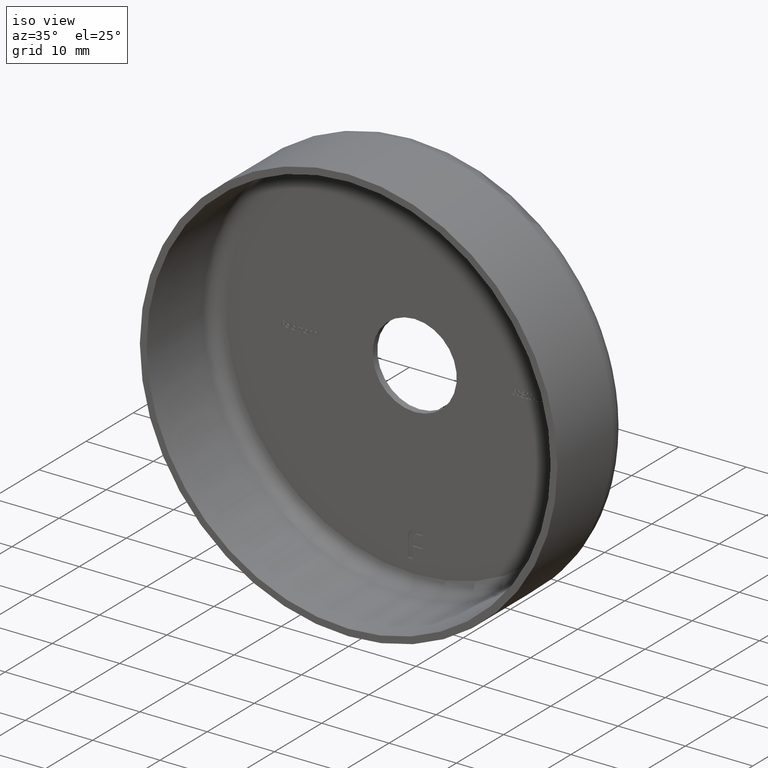
[diagram: clean part render]
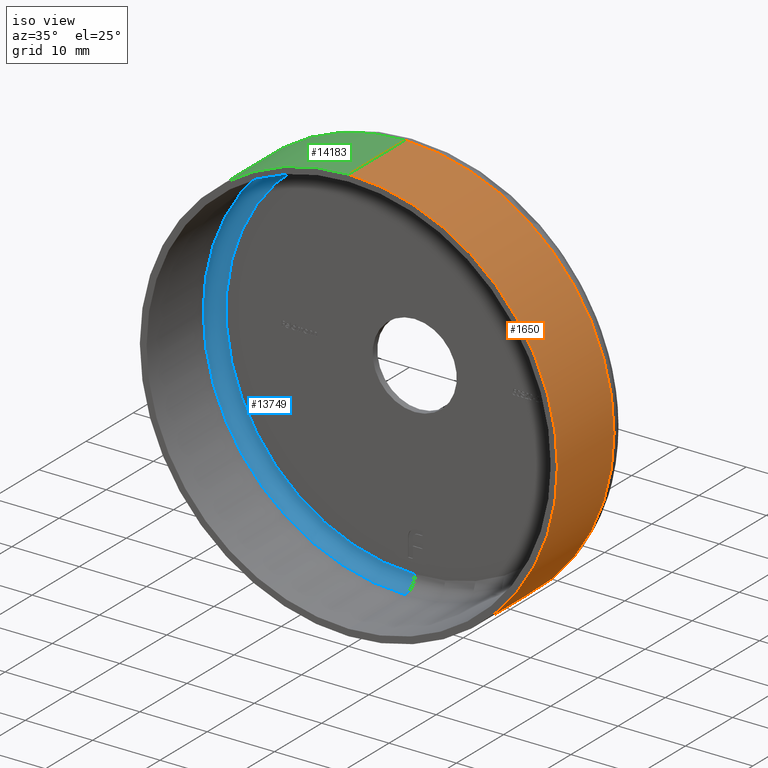
[diagram: same view with three faces highlighted in distinct colors, each labeled with its STEP entity id]
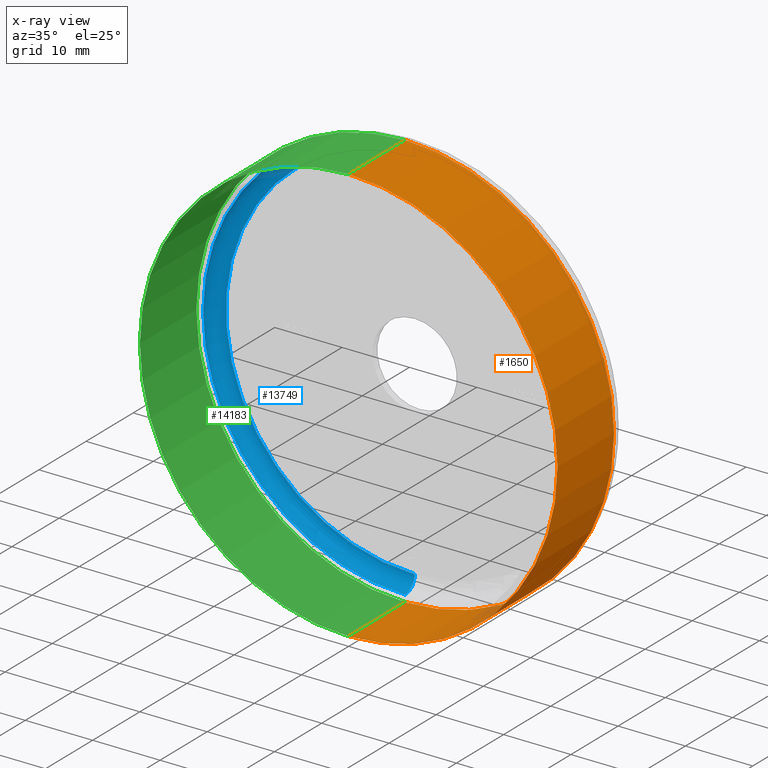
[diagram: x-ray of the same camera — body ghosted, the three highlighted faces saturated]
A machine part, iso view with three faces highlighted in distinct colors.
The next image is the same camera in x-ray (body ghosted, the three faces saturated) — at least one of them is partly hidden behind the body in this view.
Their STEP definitions:

[orange] entity #1650 — the highlighted cylindrical surface (partial cylindrical patch) has radius 31 mm, axis along (-0, -1, -0).
#221 = VERTEX_POINT ( 'NONE', #15718 ) ;
#300 = CIRCLE ( 'NONE', #9098, 31.00000000000000000 ) ;
#369 = DIRECTION ( 'NONE',  ( 0.000000000000000000, 0.000000000000000000, -1.000000000000000000 ) ) ;
#527 = EDGE_CURVE ( 'NONE', #8568, #221, #2479, .T. ) ;
#679 = CARTESIAN_POINT ( 'NONE',  ( 3.796405077356795115E-15, 0.000000000000000000, 31.00000000000000000 ) ) ;
#1650 = ADVANCED_FACE ( 'NONE', ( #9053 ), #14425, .T. ) ;
#1880 = ORIENTED_EDGE ( 'NONE', *, *, #527, .T. ) ;
#2398 = EDGE_CURVE ( 'NONE', #221, #10810, #6713, .T. ) ;
#2479 = CIRCLE ( 'NONE', #4828, 31.00000000000000000 ) ;
#2665 = EDGE_CURVE ( 'NONE', #6222, #10810, #300, .T. ) ;
#3789 = DIRECTION ( 'NONE',  ( -0.000000000000000000, -1.000000000000000000, -0.000000000000000000 ) ) ;
#4602 = CARTESIAN_POINT ( 'NONE',  ( 3.796405077356795115E-15, 0.000000000000000000, 31.00000000000000000 ) ) ;
#4604 = DIRECTION ( 'NONE',  ( -0.000000000000000000, -1.000000000000000000, -0.000000000000000000 ) ) ;
#4828 = AXIS2_PLACEMENT_3D ( 'NONE', #16277, #8327, #369 ) ;
#4832 = VECTOR ( 'NONE', #3789, 1000.000000000000000 ) ;
#4951 = AXIS2_PLACEMENT_3D ( 'NONE', #7327, #4604, #5929 ) ;
#5474 = EDGE_CURVE ( 'NONE', #8568, #6222, #12940, .T. ) ;
#5929 = DIRECTION ( 'NONE',  ( 0.000000000000000000, 0.000000000000000000, -1.000000000000000000 ) ) ;
#6222 = VERTEX_POINT ( 'NONE', #11589 ) ;
#6713 = LINE ( 'NONE', #679, #15481 ) ;
#7184 = CARTESIAN_POINT ( 'NONE',  ( 0.000000000000000000, 12.00000000000000000, -31.00000000000000000 ) ) ;
#7327 = CARTESIAN_POINT ( 'NONE',  ( 0.000000000000000000, 0.000000000000000000, 0.000000000000000000 ) ) ;
#8030 = CARTESIAN_POINT ( 'NONE',  ( 0.000000000000000000, 0.000000000000000000, 0.000000000000000000 ) ) ;
#8327 = DIRECTION ( 'NONE',  ( -0.000000000000000000, -1.000000000000000000, -0.000000000000000000 ) ) ;
#8568 = VERTEX_POINT ( 'NONE', #7184 ) ;
#9053 = FACE_OUTER_BOUND ( 'NONE', #13341, .T. ) ;
#9098 = AXIS2_PLACEMENT_3D ( 'NONE', #8030, #9427, #9324 ) ;
#9200 = CARTESIAN_POINT ( 'NONE',  ( 0.000000000000000000, 0.000000000000000000, -31.00000000000000000 ) ) ;
#9324 = DIRECTION ( 'NONE',  ( 0.000000000000000000, 0.000000000000000000, -1.000000000000000000 ) ) ;
#9427 = DIRECTION ( 'NONE',  ( -0.000000000000000000, -1.000000000000000000, -0.000000000000000000 ) ) ;
#9978 = DIRECTION ( 'NONE',  ( -0.000000000000000000, -1.000000000000000000, -0.000000000000000000 ) ) ;
#10810 = VERTEX_POINT ( 'NONE', #4602 ) ;
#11589 = CARTESIAN_POINT ( 'NONE',  ( 0.000000000000000000, 0.000000000000000000, -31.00000000000000000 ) ) ;
#11889 = ORIENTED_EDGE ( 'NONE', *, *, #5474, .F. ) ;
#12940 = LINE ( 'NONE', #9200, #4832 ) ;
#13341 = EDGE_LOOP ( 'NONE', ( #1880, #14442, #13627, #11889 ) ) ;
#13627 = ORIENTED_EDGE ( 'NONE', *, *, #2665, .F. ) ;
#14425 = CYLINDRICAL_SURFACE ( 'NONE', #4951, 31.00000000000000000 ) ;
#14442 = ORIENTED_EDGE ( 'NONE', *, *, #2398, .T. ) ;
#15481 = VECTOR ( 'NONE', #9978, 1000.000000000000000 ) ;
#15718 = CARTESIAN_POINT ( 'NONE',  ( 3.796405077356795115E-15, 12.00000000000000000, 31.00000000000000000 ) ) ;
#16277 = CARTESIAN_POINT ( 'NONE',  ( 0.000000000000000000, 12.00000000000000000, 0.000000000000000000 ) ) ;

[blue] entity #13749 — the highlighted toroidal blend (fillet) surface has major radius 28 mm and minor (blend) radius 2 mm.
#994 = DIRECTION ( 'NONE',  ( -0.000000000000000000, -1.000000000000000000, -0.000000000000000000 ) ) ;
#1106 = DIRECTION ( 'NONE',  ( -0.000000000000000000, -1.000000000000000000, -0.000000000000000000 ) ) ;
#2013 = AXIS2_PLACEMENT_3D ( 'NONE', #16828, #1106, #7770 ) ;
#2286 = CARTESIAN_POINT ( 'NONE',  ( 0.000000000000000000, 12.00000000000000000, -30.00000000000000000 ) ) ;
#2421 = FACE_OUTER_BOUND ( 'NONE', #8315, .T. ) ;
#3278 = CIRCLE ( 'NONE', #13992, 2.000000000000001776 ) ;
#3483 = EDGE_CURVE ( 'NONE', #4396, #7032, #7973, .T. ) ;
#3486 = DIRECTION ( 'NONE',  ( 0.000000000000000000, 0.000000000000000000, -1.000000000000000000 ) ) ;
#3742 = ORIENTED_EDGE ( 'NONE', *, *, #17010, .F. ) ;
#4037 = DIRECTION ( 'NONE',  ( 1.000000000000000000, 0.000000000000000000, -1.224646799147353207E-16 ) ) ;
#4396 = VERTEX_POINT ( 'NONE', #5768 ) ;
#4819 = CARTESIAN_POINT ( 'NONE',  ( 0.000000000000000000, 14.00000000000000000, 0.000000000000000000 ) ) ;
#5155 = ORIENTED_EDGE ( 'NONE', *, *, #3483, .F. ) ;
#5216 = AXIS2_PLACEMENT_3D ( 'NONE', #11999, #4037, #5346 ) ;
#5346 = DIRECTION ( 'NONE',  ( -1.224646799147351482E-16, 0.000000000000000000, -1.000000000000000000 ) ) ;
#5768 = CARTESIAN_POINT ( 'NONE',  ( 3.551475717527324030E-15, 14.00000000000000000, 27.99999999999999645 ) ) ;
#6825 = VERTEX_POINT ( 'NONE', #9738 ) ;
#7032 = VERTEX_POINT ( 'NONE', #14485 ) ;
#7430 = DIRECTION ( 'NONE',  ( -1.000000000000000000, 0.000000000000000000, 0.000000000000000000 ) ) ;
#7770 = DIRECTION ( 'NONE',  ( 0.000000000000000000, 0.000000000000000000, -1.000000000000000000 ) ) ;
#7973 = CIRCLE ( 'NONE', #8071, 27.99999999999999645 ) ;
#8071 = AXIS2_PLACEMENT_3D ( 'NONE', #4819, #14335, #3486 ) ;
#8315 = EDGE_LOOP ( 'NONE', ( #5155, #14572, #13979, #3742 ) ) ;
#9738 = CARTESIAN_POINT ( 'NONE',  ( 3.673940397442059178E-15, 12.00000000000000000, 30.00000000000000000 ) ) ;
#10186 = CARTESIAN_POINT ( 'NONE',  ( 0.000000000000000000, 12.00000000000000000, -27.99999999999999645 ) ) ;
#10245 = DIRECTION ( 'NONE',  ( 0.000000000000000000, 0.000000000000000000, 1.000000000000000000 ) ) ;
#10883 = VERTEX_POINT ( 'NONE', #2286 ) ;
#11251 = AXIS2_PLACEMENT_3D ( 'NONE', #11633, #994, #16903 ) ;
#11633 = CARTESIAN_POINT ( 'NONE',  ( 0.000000000000000000, 12.00000000000000000, 0.000000000000000000 ) ) ;
#11999 = CARTESIAN_POINT ( 'NONE',  ( 3.429011037612588881E-15, 12.00000000000000000, 27.99999999999999645 ) ) ;
#12821 = EDGE_CURVE ( 'NONE', #6825, #10883, #13037, .T. ) ;
#13037 = CIRCLE ( 'NONE', #2013, 30.00000000000000000 ) ;
#13749 = ADVANCED_FACE ( 'NONE', ( #2421 ), #16110, .F. ) ;
#13979 = ORIENTED_EDGE ( 'NONE', *, *, #12821, .T. ) ;
#13992 = AXIS2_PLACEMENT_3D ( 'NONE', #10186, #7430, #10245 ) ;
#14258 = EDGE_CURVE ( 'NONE', #4396, #6825, #16094, .T. ) ;
#14335 = DIRECTION ( 'NONE',  ( -0.000000000000000000, -1.000000000000000000, -0.000000000000000000 ) ) ;
#14485 = CARTESIAN_POINT ( 'NONE',  ( 0.000000000000000000, 14.00000000000000000, -27.99999999999999645 ) ) ;
#14572 = ORIENTED_EDGE ( 'NONE', *, *, #14258, .T. ) ;
#16094 = CIRCLE ( 'NONE', #5216, 2.000000000000001776 ) ;
#16110 = TOROIDAL_SURFACE ( 'NONE', #11251, 27.99999999999999645, 2.000000000000000000 ) ;
#16828 = CARTESIAN_POINT ( 'NONE',  ( 0.000000000000000000, 12.00000000000000000, 0.000000000000000000 ) ) ;
#16903 = DIRECTION ( 'NONE',  ( 0.000000000000000000, 0.000000000000000000, -1.000000000000000000 ) ) ;
#17010 = EDGE_CURVE ( 'NONE', #7032, #10883, #3278, .T. ) ;

[green] entity #14183 — the highlighted cylindrical surface (partial cylindrical patch) has radius 31 mm, axis along (-0, -1, -0).
#221 = VERTEX_POINT ( 'NONE', #15718 ) ;
#321 = CIRCLE ( 'NONE', #6458, 31.00000000000000000 ) ;
#679 = CARTESIAN_POINT ( 'NONE',  ( 3.796405077356795115E-15, 0.000000000000000000, 31.00000000000000000 ) ) ;
#2398 = EDGE_CURVE ( 'NONE', #221, #10810, #6713, .T. ) ;
#3789 = DIRECTION ( 'NONE',  ( -0.000000000000000000, -1.000000000000000000, -0.000000000000000000 ) ) ;
#4226 = CARTESIAN_POINT ( 'NONE',  ( 0.000000000000000000, 0.000000000000000000, 0.000000000000000000 ) ) ;
#4602 = CARTESIAN_POINT ( 'NONE',  ( 3.796405077356795115E-15, 0.000000000000000000, 31.00000000000000000 ) ) ;
#4682 = CIRCLE ( 'NONE', #7122, 31.00000000000000000 ) ;
#4832 = VECTOR ( 'NONE', #3789, 1000.000000000000000 ) ;
#5146 = ORIENTED_EDGE ( 'NONE', *, *, #13962, .F. ) ;
#5474 = EDGE_CURVE ( 'NONE', #8568, #6222, #12940, .T. ) ;
#6060 = EDGE_LOOP ( 'NONE', ( #15212, #6360, #15989, #5146 ) ) ;
#6222 = VERTEX_POINT ( 'NONE', #11589 ) ;
#6360 = ORIENTED_EDGE ( 'NONE', *, *, #15600, .T. ) ;
#6458 = AXIS2_PLACEMENT_3D ( 'NONE', #4226, #6984, #8056 ) ;
#6487 = DIRECTION ( 'NONE',  ( -0.000000000000000000, -1.000000000000000000, -0.000000000000000000 ) ) ;
#6713 = LINE ( 'NONE', #679, #15481 ) ;
#6773 = CARTESIAN_POINT ( 'NONE',  ( 0.000000000000000000, 12.00000000000000000, 0.000000000000000000 ) ) ;
#6984 = DIRECTION ( 'NONE',  ( -0.000000000000000000, -1.000000000000000000, -0.000000000000000000 ) ) ;
#7122 = AXIS2_PLACEMENT_3D ( 'NONE', #6773, #15964, #13250 ) ;
#7184 = CARTESIAN_POINT ( 'NONE',  ( 0.000000000000000000, 12.00000000000000000, -31.00000000000000000 ) ) ;
#8056 = DIRECTION ( 'NONE',  ( 0.000000000000000000, 0.000000000000000000, -1.000000000000000000 ) ) ;
#8568 = VERTEX_POINT ( 'NONE', #7184 ) ;
#9200 = CARTESIAN_POINT ( 'NONE',  ( 0.000000000000000000, 0.000000000000000000, -31.00000000000000000 ) ) ;
#9978 = DIRECTION ( 'NONE',  ( -0.000000000000000000, -1.000000000000000000, -0.000000000000000000 ) ) ;
#10810 = VERTEX_POINT ( 'NONE', #4602 ) ;
#11589 = CARTESIAN_POINT ( 'NONE',  ( 0.000000000000000000, 0.000000000000000000, -31.00000000000000000 ) ) ;
#11725 = DIRECTION ( 'NONE',  ( 0.000000000000000000, 0.000000000000000000, -1.000000000000000000 ) ) ;
#12940 = LINE ( 'NONE', #9200, #4832 ) ;
#13250 = DIRECTION ( 'NONE',  ( 0.000000000000000000, 0.000000000000000000, -1.000000000000000000 ) ) ;
#13818 = CYLINDRICAL_SURFACE ( 'NONE', #16230, 31.00000000000000000 ) ;
#13962 = EDGE_CURVE ( 'NONE', #10810, #6222, #321, .T. ) ;
#14183 = ADVANCED_FACE ( 'NONE', ( #14860 ), #13818, .T. ) ;
#14860 = FACE_OUTER_BOUND ( 'NONE', #6060, .T. ) ;
#15212 = ORIENTED_EDGE ( 'NONE', *, *, #2398, .F. ) ;
#15481 = VECTOR ( 'NONE', #9978, 1000.000000000000000 ) ;
#15600 = EDGE_CURVE ( 'NONE', #221, #8568, #4682, .T. ) ;
#15718 = CARTESIAN_POINT ( 'NONE',  ( 3.796405077356795115E-15, 12.00000000000000000, 31.00000000000000000 ) ) ;
#15964 = DIRECTION ( 'NONE',  ( -0.000000000000000000, -1.000000000000000000, -0.000000000000000000 ) ) ;
#15989 = ORIENTED_EDGE ( 'NONE', *, *, #5474, .T. ) ;
#16230 = AXIS2_PLACEMENT_3D ( 'NONE', #17105, #6487, #11725 ) ;
#17105 = CARTESIAN_POINT ( 'NONE',  ( 0.000000000000000000, 0.000000000000000000, 0.000000000000000000 ) ) ;